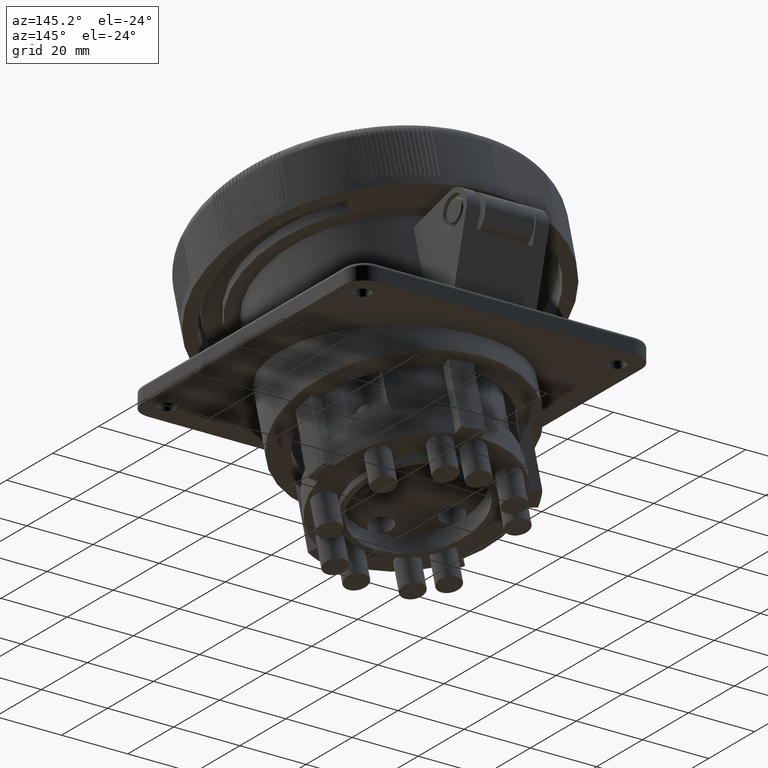
[diagram: clean part render]
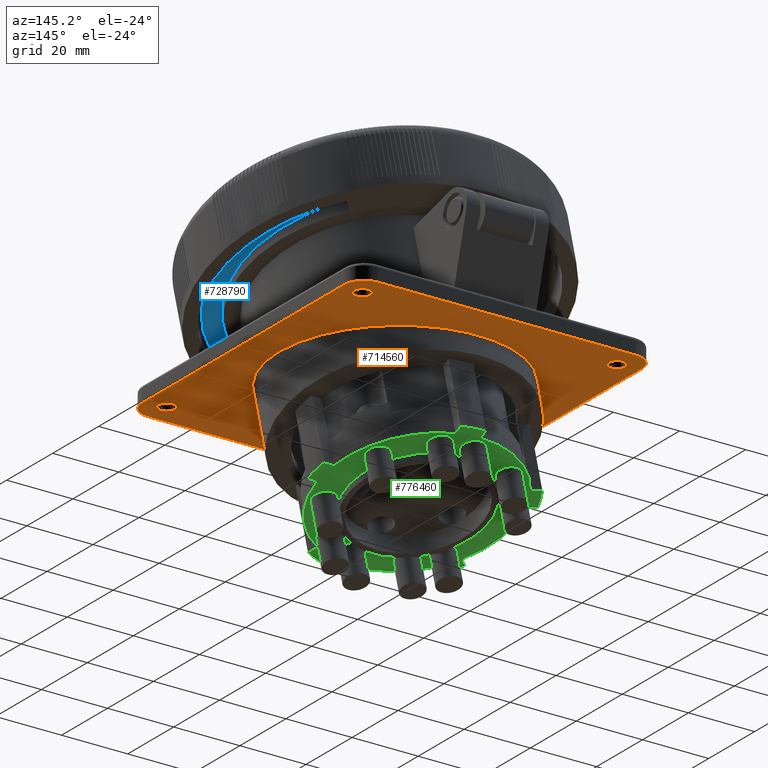
[diagram: same view with three faces highlighted in distinct colors, each labeled with its STEP entity id]
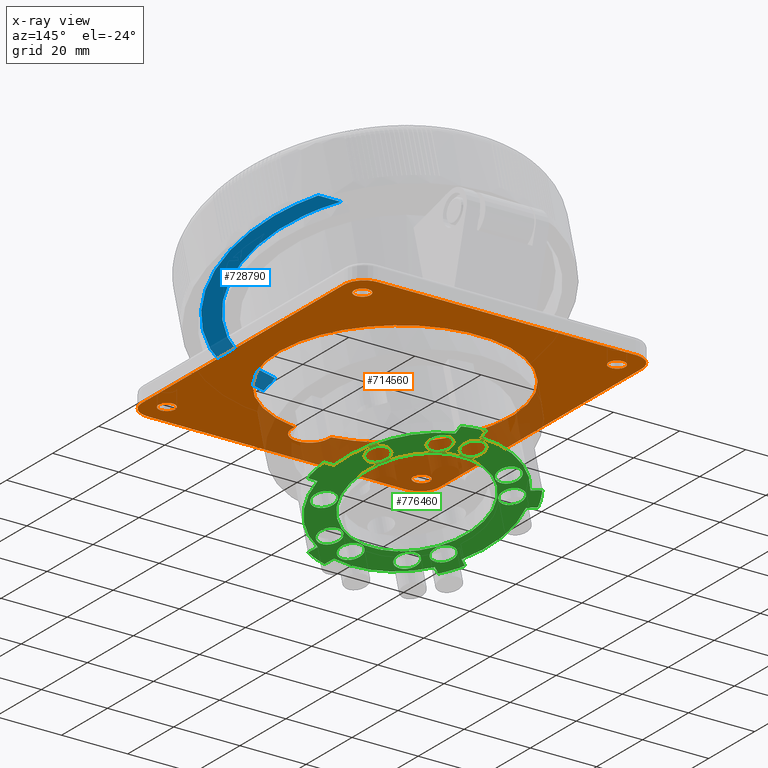
[diagram: x-ray of the same camera — body ghosted, the three highlighted faces saturated]
A machine part, auxiliary view with three faces highlighted in distinct colors.
The next image is the same camera in x-ray (body ghosted, the three faces saturated) — at least one of them is partly hidden behind the body in this view.
Their STEP definitions:

[orange] entity #714560 — the highlighted planar face has unit normal (-0, -0, 1).
#712130=CARTESIAN_POINT('',(64.9633008961693,6.04780074988078,
-13.0533630608863));
#712140=DIRECTION('',(-0.463514935788134,0.847447111148266,
-0.25881904510252));
#712150=VECTOR('',#712140,1.);
#712160=LINE('',#712130,#712150);
#712170=CARTESIAN_POINT('',(60.3116143689471,14.5525068663275,
-15.6507875927297));
#712180=VERTEX_POINT('',#712170);
#712190=CARTESIAN_POINT('',(59.8390211807516,15.4165518002921,
-15.9146757832639));
#712200=VERTEX_POINT('',#712190);
#712210=EDGE_CURVE('',#712180,#712200,#712160,.T.);
#712510=CARTESIAN_POINT('',(65.1369943147574,17.1917697138992,
-15.6507875927297));
#712520=DIRECTION('',(-0.124198452724194,0.227072769060265,
0.965925826289068));
#712530=DIRECTION('',(-0.463514935788134,0.847447111148266,
-0.25881904510252));
#712540=AXIS2_PLACEMENT_3D('',#712510,#712520,#712530);
#712550=ELLIPSE('',#712540,5.69401899225546,5.5);
#712560=CARTESIAN_POINT('',(69.9623742605676,19.8310325614709,
-15.6507875927297));
#712570=VERTEX_POINT('',#712560);
#712580=EDGE_CURVE('',#712180,#712570,#712550,.T.);
#712830=CARTESIAN_POINT('',(74.6140607877898,11.3263264450242,
-13.0533630608863));
#712840=DIRECTION('',(0.463514935788134,-0.847447111148266,
0.25881904510252));
#712850=VECTOR('',#712840,1.);
#712860=LINE('',#712830,#712850);
#712870=CARTESIAN_POINT('',(69.4897810723721,20.6950774954355,
-15.9146757832639));
#712880=VERTEX_POINT('',#712870);
#712890=EDGE_CURVE('',#712880,#712570,#712860,.T.);
#713090=CARTESIAN_POINT('',(46.4513887404245,-4.07737126534886,
-13.0533630608863));
#713100=DIRECTION('',(-0.124198452724194,0.227072769060265,
0.965925826289068));
#713110=DIRECTION('',(0.877341808329136,0.479865972285764,
1.38777878078145E-17));
#713120=AXIS2_PLACEMENT_3D('',#713090,#713100,#713110);
#713130=PLANE('',#713120);
#713140=CARTESIAN_POINT('',(34.6204764139434,-7.24543500210465,
-13.8298201961939));
#713150=DIRECTION('',(-0.124198452724194,0.227072769060265,
0.965925826289068));
#713160=DIRECTION('',(0.877341808329136,0.479865972285764,
1.38777878078145E-17));
#713170=AXIS2_PLACEMENT_3D('',#713140,#713150,#713160);
#713180=CIRCLE('',#713170,2.5);
#713190=CARTESIAN_POINT('',(36.8138309347663,-6.04577007139024,
-13.8298201961939));
#713200=VERTEX_POINT('',#713190);
#713210=CARTESIAN_POINT('',(32.4271218931206,-8.44509993281906,
-13.8298201961939));
#713220=VERTEX_POINT('',#713210);
#713230=EDGE_CURVE('',#713200,#713220,#713180,.T.);
#713240=ORIENTED_EDGE('',*,*,#713230,.T.);
#713250=EDGE_CURVE('',#713220,#713200,#713180,.T.);
#713260=ORIENTED_EDGE('',*,*,#713250,.T.);
#713270=EDGE_LOOP('',(#713260,#713240));
#713280=FACE_BOUND('',#713270,.T.);
#713290=ORIENTED_EDGE('',*,*,#712580,.T.);
#713300=ORIENTED_EDGE('',*,*,#712210,.F.);
#713310=CARTESIAN_POINT('',(48.0777589999985,48.3812709999999,
-25.1763813836561));
#713320=DIRECTION('',(-0.124198452724194,0.227072769060265,
0.965925826289068));
#713330=DIRECTION('',(-0.463514935788134,0.847447111148266,
-0.25881904510252));
#713340=AXIS2_PLACEMENT_3D('',#713310,#713320,#713330);
#713350=ELLIPSE('',#713340,36.2346663143529,35.);
#713360=EDGE_CURVE('',#712880,#712200,#713350,.T.);
#713370=ORIENTED_EDGE('',*,*,#713360,.T.);
#713380=ORIENTED_EDGE('',*,*,#712890,.F.);
#713390=EDGE_LOOP('',(#713380,#713370,#713300,#713290));
#713400=FACE_BOUND('',#713390,.T.);
#713410=CARTESIAN_POINT('',(62.7770261132955,101.737249311502,
-35.8294390299081));
#713420=DIRECTION('',(-0.124198452724194,0.227072769060265,
0.965925826289068));
#713430=DIRECTION('',(0.877341808329136,0.479865972285764,
1.38777878078145E-17));
#713440=AXIS2_PLACEMENT_3D('',#713410,#713420,#713430);
#713450=CIRCLE('',#713440,2.5);
#713460=CARTESIAN_POINT('',(64.9703806341183,102.936914242216,
-35.8294390299081));
#713470=VERTEX_POINT('',#713460);
#713480=CARTESIAN_POINT('',(60.5836715924726,100.537584380787,
-35.8294390299081));
#713490=VERTEX_POINT('',#713480);
#713500=EDGE_CURVE('',#713470,#713490,#713450,.T.);
#713510=ORIENTED_EDGE('',*,*,#713500,.T.);
#713520=EDGE_CURVE('',#713490,#713470,#713450,.T.);
#713530=ORIENTED_EDGE('',*,*,#713520,.T.);
#713540=EDGE_LOOP('',(#713530,#713510));
#713550=FACE_BOUND('',#713540,.T.);
#713560=CARTESIAN_POINT('',(-4.778293128048,64.787569445498,
-35.8294390299081));
#713570=DIRECTION('',(-0.124198452724194,0.227072769060265,
0.965925826289068));
#713580=DIRECTION('',(0.877341808329136,0.479865972285764,
1.38777878078145E-17));
#713590=AXIS2_PLACEMENT_3D('',#713560,#713570,#713580);
#713600=CIRCLE('',#713590,2.5);
#713610=CARTESIAN_POINT('',(-2.58493860722516,65.9872343762124,
-35.8294390299081));
#713620=VERTEX_POINT('',#713610);
#713630=CARTESIAN_POINT('',(-6.97164764887084,63.5879045147836,
-35.8294390299081));
#713640=VERTEX_POINT('',#713630);
#713650=EDGE_CURVE('',#713620,#713640,#713600,.T.);
#713660=ORIENTED_EDGE('',*,*,#713650,.T.);
#713670=EDGE_CURVE('',#713640,#713620,#713600,.T.);
#713680=ORIENTED_EDGE('',*,*,#713670,.T.);
#713690=EDGE_LOOP('',(#713680,#713660));
#713700=FACE_BOUND('',#713690,.T.);
#713710=CARTESIAN_POINT('',(102.175795655287,29.7042448638992,
-13.8298201961939));
#713720=DIRECTION('',(-0.124198452724194,0.227072769060265,
0.965925826289068));
#713730=DIRECTION('',(0.877341808329136,0.479865972285764,
1.38777878078145E-17));
#713740=AXIS2_PLACEMENT_3D('',#713710,#713720,#713730);
#713750=CIRCLE('',#713740,2.5);
#713760=CARTESIAN_POINT('',(104.36915017611,30.9039097946136,
-13.8298201961939));
#713770=VERTEX_POINT('',#713760);
#713780=CARTESIAN_POINT('',(99.982441134464,28.5045799331848,
-13.8298201961939));
#713790=VERTEX_POINT('',#713780);
#713800=EDGE_CURVE('',#713770,#713790,#713750,.T.);
#713810=ORIENTED_EDGE('',*,*,#713800,.T.);
#713820=EDGE_CURVE('',#713790,#713770,#713750,.T.);
#713830=ORIENTED_EDGE('',*,*,#713820,.T.);
#713840=EDGE_LOOP('',(#713830,#713810));
#713850=FACE_BOUND('',#713840,.T.);
#713860=CARTESIAN_POINT('',(34.877077913461,-8.75653865496992,
-13.4415916285401));
#713870=DIRECTION('',(0.124198452724194,-0.227072769060265,
-0.965925826289068));
#713880=DIRECTION('',(-0.877341808329136,-0.479865972285764,
-1.38777878078145E-17));
#713890=AXIS2_PLACEMENT_3D('',#713860,#713870,#713880);
#713900=CIRCLE('',#713890,6.);
#713910=CARTESIAN_POINT('',(37.6581675281898,-13.8412213218595,
-11.888677357925));
#713920=VERTEX_POINT('',#713910);
#713930=CARTESIAN_POINT('',(29.6130270634862,-11.6357344886845,
-13.4415916285401));
#713940=VERTEX_POINT('',#713930);
#713950=EDGE_CURVE('',#713920,#713940,#713900,.T.);
#713960=ORIENTED_EDGE('',*,*,#713950,.T.);
#713970=CARTESIAN_POINT('',(111.354879427837,26.4675203501447,
-11.888677357925));
#713980=DIRECTION('',(-0.877341808329136,-0.479865972285765,
3.46519046242032E-17));
#713990=VECTOR('',#713980,1.);
#714000=LINE('',#713970,#713990);
#714010=CARTESIAN_POINT('',(106.090828577862,23.5883245164301,
-11.888677357925));
#714020=VERTEX_POINT('',#714010);
#714030=EDGE_CURVE('',#714020,#713920,#714000,.T.);
#714040=ORIENTED_EDGE('',*,*,#714030,.T.);
#714050=CARTESIAN_POINT('',(103.309738963134,28.6730071833197,
-13.4415916285401));
#714060=DIRECTION('',(-0.124198452724194,0.227072769060265,
0.965925826289068));
#714070=DIRECTION('',(0.877341808329136,0.479865972285764,
1.38777878078145E-17));
#714080=AXIS2_PLACEMENT_3D('',#714050,#714060,#714070);
#714090=CIRCLE('',#714080,6.);
#714100=CARTESIAN_POINT('',(108.573789813108,31.5522030170343,
-13.4415916285401));
#714110=VERTEX_POINT('',#714100);
#714120=EDGE_CURVE('',#714020,#714110,#714090,.T.);
#714130=ORIENTED_EDGE('',*,*,#714120,.F.);
#714140=CARTESIAN_POINT('',(65.0033858490238,111.212231464971,
-37.770581868177));
#714150=DIRECTION('',(0.463514935788134,-0.847447111148266,
0.25881904510252));
#714160=VECTOR('',#714150,1.);
#714170=LINE('',#714140,#714160);
#714180=CARTESIAN_POINT('',(67.7844754637526,106.127548798082,
-36.2176675975619));
#714190=VERTEX_POINT('',#714180);
#714200=EDGE_CURVE('',#714190,#714110,#714170,.T.);
#714210=ORIENTED_EDGE('',*,*,#714200,.T.);
#714220=CARTESIAN_POINT('',(62.5204246137778,103.248352964367,
-36.2176675975619));
#714230=DIRECTION('',(-0.124198452724194,0.227072769060265,
0.965925826289068));
#714240=DIRECTION('',(0.877341808329136,0.479865972285764,
1.38777878078145E-17));
#714250=AXIS2_PLACEMENT_3D('',#714220,#714230,#714240);
#714260=CIRCLE('',#714250,6.);
#714270=CARTESIAN_POINT('',(59.739334999049,108.333035631257,
-37.770581868177));
#714280=VERTEX_POINT('',#714270);
#714290=EDGE_CURVE('',#714190,#714280,#714260,.T.);
#714300=ORIENTED_EDGE('',*,*,#714290,.F.);
#714310=CARTESIAN_POINT('',(-13.9573769005984,68.0242939592525,
-37.770581868177));
#714320=DIRECTION('',(0.877341808329136,0.479865972285765,
-1.08723540441493E-16));
#714330=VECTOR('',#714320,1.);
#714340=LINE('',#714310,#714330);
#714350=CARTESIAN_POINT('',(-8.69332605062357,70.9034897929671,
-37.770581868177));
#714360=VERTEX_POINT('',#714350);
#714370=EDGE_CURVE('',#714360,#714280,#714340,.T.);
#714380=ORIENTED_EDGE('',*,*,#714370,.T.);
#714390=CARTESIAN_POINT('',(-5.91223643589476,65.8188071260775,
-36.2176675975619));
#714400=DIRECTION('',(-0.124198452724194,0.227072769060265,
0.965925826289068));
#714410=DIRECTION('',(0.877341808329136,0.479865972285764,
1.38777878078145E-17));
#714420=AXIS2_PLACEMENT_3D('',#714390,#714400,#714410);
#714430=CIRCLE('',#714420,6.);
#714440=CARTESIAN_POINT('',(-11.1762872858696,62.9396112923629,
-36.2176675975619));
#714450=VERTEX_POINT('',#714440);
#714460=EDGE_CURVE('',#714360,#714450,#714430,.T.);
#714470=ORIENTED_EDGE('',*,*,#714460,.F.);
#714480=CARTESIAN_POINT('',(32.394116678215,-16.7204171555741,
-11.888677357925));
#714490=DIRECTION('',(-0.463514935788134,0.847447111148266,
-0.25881904510252));
#714500=VECTOR('',#714490,1.);
#714510=LINE('',#714480,#714500);
#714520=EDGE_CURVE('',#713940,#714450,#714510,.T.);
#714530=ORIENTED_EDGE('',*,*,#714520,.T.);
#714540=EDGE_LOOP('',(#714530,#714470,#714380,#714300,#714210,#714130,
#714040,#713960));
#714550=FACE_OUTER_BOUND('',#714540,.T.);
#714560=ADVANCED_FACE('',(#713280,#713400,#713550,#713700,#713850,
#714550),#713130,.F.);

[blue] entity #728790 — the highlighted planar face has unit normal (0, -0.2899, 0.957).
#720590=CARTESIAN_POINT('',(60.6895238453158,85.5498852798789,
4.55943164718637));
#720600=VERTEX_POINT('',#720590);
#720970=CARTESIAN_POINT('',(71.2638731338416,16.711622890613,
2.44078852294739));
#720980=VERTEX_POINT('',#720970);
#721010=CARTESIAN_POINT('',(48.0777589999985,48.3812709999999,
3.69999951839434));
#721020=DIRECTION('',(0.0155208342731933,-0.0283768335211543,
0.999476792638417));
#721030=DIRECTION('',(0.479614902876491,-0.876882776636393,
-0.0323441026652965));
#721040=AXIS2_PLACEMENT_3D('',#721010,#721020,#721030);
#721050=ELLIPSE('',#721040,39.270546639095,39.25);
#721060=EDGE_CURVE('',#720980,#720600,#721050,.T.);
#728290=CARTESIAN_POINT('',(72.3194900872389,14.7816321426027,
2.36960019474671));
#728300=DIRECTION('',(0.479614902876491,-0.876882776636394,
-0.0323441026652964));
#728310=VECTOR('',#728300,1.);
#728320=LINE('',#728290,#728310);
#728330=CARTESIAN_POINT('',(73.8024807846005,12.0702714391944,
2.26959078494842));
#728340=VERTEX_POINT('',#728330);
#728350=EDGE_CURVE('',#720980,#728340,#728320,.T.);
#728550=CARTESIAN_POINT('',(63.9227045393117,115.271962737874,
5.3530836739709));
#728560=DIRECTION('',(0.0155208342731933,-0.0283768335211543,
0.999476792638417));
#728570=DIRECTION('',(0.479614902876491,-0.876882776636393,
-0.0323441026652965));
#728580=AXIS2_PLACEMENT_3D('',#728550,#728560,#728570);
#728590=PLANE('',#728580);
#728600=CARTESIAN_POINT('',(11.9963675723615,58.9169486561428,
4.55943164718638));
#728610=DIRECTION('',(0.877341808329136,0.479865972285764,
-2.73235718333155E-16));
#728620=VECTOR('',#728610,1.);
#728630=LINE('',#728600,#728620);
#728640=CARTESIAN_POINT('',(66.6603242438693,88.8156408968746,
4.55943164718637));
#728650=VERTEX_POINT('',#728640);
#728660=EDGE_CURVE('',#720600,#728650,#728630,.T.);
#728670=ORIENTED_EDGE('',*,*,#728660,.T.);
#728680=ORIENTED_EDGE('',*,*,#721060,.T.);
#728690=ORIENTED_EDGE('',*,*,#728350,.F.);
#728700=CARTESIAN_POINT('',(48.0777589999985,48.3812709999999,
3.69999951839434));
#728710=DIRECTION('',(0.0155208342731933,-0.0283768335211543,
0.999476792638417));
#728720=DIRECTION('',(0.479614902876499,-0.876882776636389,
-0.0323441026652964));
#728730=AXIS2_PLACEMENT_3D('',#728700,#728710,#728720);
#728740=ELLIPSE('',#728730,44.5232949156618,44.5);
#728750=EDGE_CURVE('',#728340,#728650,#728740,.T.);
#728760=ORIENTED_EDGE('',*,*,#728750,.F.);
#728770=EDGE_LOOP('',(#728760,#728690,#728680,#728670));
#728780=FACE_OUTER_BOUND('',#728770,.T.);
#728790=ADVANCED_FACE('',(#728780),#728590,.F.);

[green] entity #776460 — the highlighted planar face has unit normal (-0, 0.2588, -0.9659).
#709210=CARTESIAN_POINT('',(74.1896106273238,59.8014813567555,
-62.0000004816055));
#709220=VERTEX_POINT('',#709210);
#709450=CARTESIAN_POINT('',(76.787577873568,61.3426096749529,
-62.0000004816055));
#709460=VERTEX_POINT('',#709450);
#709490=CARTESIAN_POINT('',(26.8667654374664,31.7293118845661,
-62.0000004816055));
#709500=DIRECTION('',(-0.860060274487055,-0.510192438447741,
1.45716771982052E-16));
#709510=VECTOR('',#709500,1.);
#709520=LINE('',#709490,#709510);
#709530=EDGE_CURVE('',#709460,#709220,#709520,.T.);
#709760=CARTESIAN_POINT('',(71.6301849467216,32.3334290259488,
-62.0000004816055));
#709770=VERTEX_POINT('',#709760);
#709880=CARTESIAN_POINT('',(48.0777589999984,48.3812710000001,
-62.0000004816055));
#709890=DIRECTION('',(-2.63677968348475E-16,1.66533453693773E-16,-1.));
#709900=DIRECTION('',(-0.877341808329136,-0.479865972285764,
1.52655665885959E-16));
#709910=AXIS2_PLACEMENT_3D('',#709880,#709890,#709900);
#709920=CIRCLE('',#709910,28.5);
#709930=EDGE_CURVE('',#709220,#709770,#709920,.T.);
#710270=CARTESIAN_POINT('',(97.9855336899202,9.16065123938455,
-62.0000004816055));
#710280=DIRECTION('',(0.750995084153517,-0.66030779457557,
-2.77555756156289E-16));
#710290=VECTOR('',#710280,1.);
#710300=LINE('',#710270,#710290);
#710310=CARTESIAN_POINT('',(73.8987011061092,30.3388501881223,
-62.0000004816055));
#710320=VERTEX_POINT('',#710310);
#710330=EDGE_CURVE('',#709770,#710320,#710300,.T.);
#735040=CARTESIAN_POINT('',(20.0761410164147,43.0747287829401,
-62.0000004816055));
#735050=VERTEX_POINT('',#735040);
#735080=CARTESIAN_POINT('',(20.6414704824839,43.1110556393287,
-62.0000004816055));
#735090=DIRECTION('',(-0.997941835857432,-0.064125597428001,
2.22044604925031E-16));
#735100=VECTOR('',#735090,1.);
#735110=LINE('',#735080,#735100);
#735120=CARTESIAN_POINT('',(17.0616776350422,42.8810258452441,
-62.0000004816055));
#735130=VERTEX_POINT('',#735120);
#735140=EDGE_CURVE('',#735050,#735130,#735110,.T.);
#735410=CARTESIAN_POINT('',(19.6272618344187,50.0603216339421,
-62.0000004816055));
#735420=VERTEX_POINT('',#735410);
#735510=CARTESIAN_POINT('',(16.6127984530463,49.8666186962461,
-62.0000004816055));
#735520=VERTEX_POINT('',#735510);
#735550=CARTESIAN_POINT('',(16.9351558573129,49.8873326901796,
-62.0000004816055));
#735560=DIRECTION('',(0.997941835857432,0.0641255974279989,
-2.22044604925031E-16));
#735570=VECTOR('',#735560,1.);
#735580=LINE('',#735550,#735570);
#735590=EDGE_CURVE('',#735520,#735420,#735580,.T.);
#735800=CARTESIAN_POINT('',(34.3779616185455,73.3725805236552,
-62.0000004816055));
#735810=VERTEX_POINT('',#735800);
#735920=CARTESIAN_POINT('',(48.0777589999984,48.3812710000001,
-62.0000004816055));
#735930=DIRECTION('',(-2.63677968348475E-16,1.66533453693773E-16,-1.));
#735940=DIRECTION('',(-0.877341808329136,-0.479865972285764,
1.52655665885959E-16));
#735950=AXIS2_PLACEMENT_3D('',#735920,#735930,#735940);
#735960=CIRCLE('',#735950,28.5);
#735970=EDGE_CURVE('',#735420,#735810,#735960,.T.);
#736170=CARTESIAN_POINT('',(66.7018087658017,-7.95012010983717,
-62.0000004816055));
#736180=DIRECTION('',(-0.3693680539729,0.929283186496061,
2.77555756156289E-16));
#736190=VECTOR('',#736180,1.);
#736200=LINE('',#736170,#736190);
#736210=CARTESIAN_POINT('',(33.2622187636592,76.1796480660341,
-62.0000004816055));
#736220=VERTEX_POINT('',#736210);
#736230=EDGE_CURVE('',#735810,#736220,#736200,.T.);
#736500=CARTESIAN_POINT('',(40.882943924018,75.9581569014655,
-62.0000004816055));
#736510=VERTEX_POINT('',#736500);
#736600=CARTESIAN_POINT('',(39.7672010691316,78.7652244438444,
-62.0000004816055));
#736610=VERTEX_POINT('',#736600);
#736640=CARTESIAN_POINT('',(72.8893222110434,-4.56583233596846,
-62.0000004816055));
#736650=DIRECTION('',(0.369368053972896,-0.929283186496063,
-2.4980018054066E-16));
#736660=VECTOR('',#736650,1.);
#736670=LINE('',#736640,#736660);
#736680=EDGE_CURVE('',#736610,#736510,#736670,.T.);
#736890=CARTESIAN_POINT('',(70.6182635581896,65.8219032781648,
-62.0000004816055));
#736900=VERTEX_POINT('',#736890);
#737010=CARTESIAN_POINT('',(48.0777589999984,48.3812710000001,
-62.0000004816055));
#737020=DIRECTION('',(-2.63677968348475E-16,1.66533453693773E-16,-1.));
#737030=DIRECTION('',(-0.877341808329136,-0.479865972285764,
1.52655665885959E-16));
#737040=AXIS2_PLACEMENT_3D('',#737010,#737020,#737030);
#737050=CIRCLE('',#737040,28.5);
#737060=EDGE_CURVE('',#736510,#736900,#737050,.T.);
#737260=CARTESIAN_POINT('',(23.5056561344929,37.8744479937516,
-62.0000004816055));
#737270=DIRECTION('',(0.860060274487053,0.510192438447744,
-1.45716771982052E-16));
#737280=VECTOR('',#737270,1.);
#737290=LINE('',#737260,#737280);
#737300=CARTESIAN_POINT('',(73.2162308044338,67.3630315963623,
-62.0000004816055));
#737310=VERTEX_POINT('',#737300);
#737320=EDGE_CURVE('',#736900,#737310,#737290,.T.);
#737570=CARTESIAN_POINT('',(48.0777589999985,48.381271,-62.0000004816055
));
#737580=DIRECTION('',(1.52655665885959E-16,-3.05311331771918E-16,1.));
#737590=DIRECTION('',(-0.605313269510932,-0.795987340197057,
-1.66533453693773E-16));
#737600=AXIS2_PLACEMENT_3D('',#737570,#737580,#737590);
#737610=CIRCLE('',#737600,31.5);
#737620=EDGE_CURVE('',#709460,#737310,#737610,.T.);
#738500=CARTESIAN_POINT('',(41.0531244154093,20.7605449242251,
-62.0000004816055));
#738510=VERTEX_POINT('',#738500);
#738590=CARTESIAN_POINT('',(67.0080303846926,27.0764634368741,
-62.0000004816055));
#738600=VERTEX_POINT('',#738590);
#738630=CARTESIAN_POINT('',(48.0777589999984,48.3812710000001,
-62.0000004816055));
#738640=DIRECTION('',(-2.63677968348475E-16,1.66533453693773E-16,-1.));
#738650=DIRECTION('',(-0.877341808329136,-0.479865972285764,
1.52655665885959E-16));
#738660=AXIS2_PLACEMENT_3D('',#738630,#738640,#738650);
#738670=CIRCLE('',#738660,28.5);
#738680=EDGE_CURVE('',#738600,#738510,#738670,.T.);
#738970=CARTESIAN_POINT('',(69.2765465440803,25.0818845990477,
-62.0000004816055));
#738980=VERTEX_POINT('',#738970);
#739010=CARTESIAN_POINT('',(91.4500001309065,5.5860123290662,
-62.0000004816055));
#739020=DIRECTION('',(-0.750995084153517,0.660307794575569,
2.77555756156289E-16));
#739030=VECTOR('',#739020,1.);
#739040=LINE('',#739010,#739030);
#739050=EDGE_CURVE('',#738980,#738600,#739040,.T.);
#739170=CARTESIAN_POINT('',(48.0777589999985,48.381271,-62.0000004816055
));
#739180=DIRECTION('',(1.52655665885959E-16,-3.05311331771918E-16,1.));
#739190=DIRECTION('',(-0.605313269510932,-0.795987340197057,
-1.66533453693773E-16));
#739200=AXIS2_PLACEMENT_3D('',#739170,#739180,#739190);
#739210=CIRCLE('',#739200,31.5);
#739220=EDGE_CURVE('',#738980,#710320,#739210,.T.);
#739500=CARTESIAN_POINT('',(37.6435713674416,12.0260135707067,
-62.0000004816055));
#739510=DIRECTION('',(-0.363630915691015,-0.931543105365347,
-1.38777878078145E-16));
#739520=VECTOR('',#739510,1.);
#739530=LINE('',#739500,#739520);
#739540=CARTESIAN_POINT('',(39.9547116218985,17.9466508891272,
-62.0000004816055));
#739550=VERTEX_POINT('',#739540);
#739560=EDGE_CURVE('',#738510,#739550,#739530,.T.);
#739830=CARTESIAN_POINT('',(34.5323226778519,23.3059613340622,
-62.0000004816055));
#739840=VERTEX_POINT('',#739830);
#739980=CARTESIAN_POINT('',(33.433909884341,20.4920672989643,
-62.0000004816055));
#739990=VERTEX_POINT('',#739980);
#740020=CARTESIAN_POINT('',(33.2586276005711,20.0430323135085,
-62.0000004816055));
#740030=DIRECTION('',(0.363630915691021,0.931543105365345,
1.11022302462516E-16));
#740040=VECTOR('',#740030,1.);
#740050=LINE('',#740020,#740040);
#740060=EDGE_CURVE('',#739990,#739840,#740050,.T.);
#740260=CARTESIAN_POINT('',(48.0777589999984,48.3812710000001,
-62.0000004816055));
#740270=DIRECTION('',(-2.63677968348475E-16,1.66533453693773E-16,-1.));
#740280=DIRECTION('',(-0.877341808329136,-0.479865972285764,
1.52655665885959E-16));
#740290=AXIS2_PLACEMENT_3D('',#740260,#740270,#740280);
#740300=CIRCLE('',#740290,28.5);
#740310=EDGE_CURVE('',#739840,#735050,#740300,.T.);
#740450=CARTESIAN_POINT('',(48.0777589999985,48.381271,-62.0000004816055
));
#740460=DIRECTION('',(1.52655665885959E-16,-3.05311331771918E-16,1.));
#740470=DIRECTION('',(-0.605313269510932,-0.795987340197057,
-1.66533453693773E-16));
#740480=AXIS2_PLACEMENT_3D('',#740450,#740460,#740470);
#740490=CIRCLE('',#740480,31.5);
#740500=EDGE_CURVE('',#739990,#739550,#740490,.T.);
#774160=CARTESIAN_POINT('',(48.0777589999985,48.381271,-62.0000004816055
));
#774170=DIRECTION('',(1.52655665885959E-16,-3.05311331771918E-16,1.));
#774180=DIRECTION('',(-0.605313269510932,-0.795987340197057,
-1.66533453693773E-16));
#774190=AXIS2_PLACEMENT_3D('',#774160,#774170,#774180);
#774200=CIRCLE('',#774190,31.5);
#774210=EDGE_CURVE('',#736610,#736220,#774200,.T.);
#774360=CARTESIAN_POINT('',(48.0777589999985,48.381271,-62.0000004816055
));
#774370=DIRECTION('',(1.52655665885959E-16,-3.05311331771918E-16,1.));
#774380=DIRECTION('',(-0.605313269510932,-0.795987340197057,
-1.66533453693773E-16));
#774390=AXIS2_PLACEMENT_3D('',#774360,#774370,#774380);
#774400=CIRCLE('',#774390,31.5);
#774410=EDGE_CURVE('',#735520,#735130,#774400,.T.);
#774540=CARTESIAN_POINT('',(48.0777589999984,48.3812710000002,
-62.0000004816055));
#774550=DIRECTION('',(-2.67120760751524E-16,1.70257009483023E-16,-1.));
#774560=DIRECTION('',(-0.877341808329136,-0.479865972285764,
1.52655665885959E-16));
#774570=AXIS2_PLACEMENT_3D('',#774540,#774550,#774560);
#774580=PLANE('',#774570);
#774590=ORIENTED_EDGE('',*,*,#739050,.T.);
#774600=ORIENTED_EDGE('',*,*,#739220,.F.);
#774610=ORIENTED_EDGE('',*,*,#710330,.T.);
#774620=ORIENTED_EDGE('',*,*,#709930,.T.);
#774630=ORIENTED_EDGE('',*,*,#709530,.T.);
#774640=ORIENTED_EDGE('',*,*,#737620,.F.);
#774650=ORIENTED_EDGE('',*,*,#737320,.T.);
#774660=ORIENTED_EDGE('',*,*,#737060,.T.);
#774670=ORIENTED_EDGE('',*,*,#736680,.T.);
#774680=ORIENTED_EDGE('',*,*,#774210,.F.);
#774690=ORIENTED_EDGE('',*,*,#736230,.T.);
#774700=ORIENTED_EDGE('',*,*,#735970,.T.);
#774710=ORIENTED_EDGE('',*,*,#735590,.T.);
#774720=ORIENTED_EDGE('',*,*,#774410,.F.);
#774730=ORIENTED_EDGE('',*,*,#735140,.T.);
#774740=ORIENTED_EDGE('',*,*,#740310,.T.);
#774750=ORIENTED_EDGE('',*,*,#740060,.T.);
#774760=ORIENTED_EDGE('',*,*,#740500,.F.);
#774770=ORIENTED_EDGE('',*,*,#739560,.T.);
#774780=ORIENTED_EDGE('',*,*,#738680,.T.);
#774790=EDGE_LOOP('',(#774780,#774770,#774760,#774750,#774740,#774730,
#774720,#774710,#774700,#774690,#774680,#774670,#774660,#774650,#774640,
#774630,#774620,#774610,#774600,#774590));
#774800=FACE_OUTER_BOUND('',#774790,.T.);
#774810=CARTESIAN_POINT('',(48.0777589999984,48.3812710000001,
-62.0000004816055));
#774820=DIRECTION('',(-2.63677968348475E-16,1.66533453693773E-16,-1.));
#774830=DIRECTION('',(-0.877341808329136,-0.479865972285764,
1.52655665885959E-16));
#774840=AXIS2_PLACEMENT_3D('',#774810,#774820,#774830);
#774850=CIRCLE('',#774840,20.25);
#774860=CARTESIAN_POINT('',(30.3115873813334,38.6639850612134,
-62.0000004816055));
#774870=VERTEX_POINT('',#774860);
#774880=CARTESIAN_POINT('',(65.8439306186634,58.0985569387868,
-62.0000004816055));
#774890=VERTEX_POINT('',#774880);
#774900=EDGE_CURVE('',#774870,#774890,#774850,.T.);
#774910=ORIENTED_EDGE('',*,*,#774900,.F.);
#774920=EDGE_CURVE('',#774890,#774870,#774850,.T.);
#774930=ORIENTED_EDGE('',*,*,#774920,.F.);
#774940=EDGE_LOOP('',(#774930,#774910));
#774950=FACE_BOUND('',#774940,.T.);
#774960=CARTESIAN_POINT('',(63.0759478669056,29.6448270814602,
-62.0000004816055));
#774970=DIRECTION('',(4.85722573273506E-16,-3.33066907387547E-16,1.));
#774980=DIRECTION('',(0.877341808329136,0.479865972285764,
-2.77555756156289E-16));
#774990=AXIS2_PLACEMENT_3D('',#774960,#774970,#774980);
#775000=CIRCLE('',#774990,3.5);
#775010=CARTESIAN_POINT('',(66.1466441960576,31.3243579844604,
-62.0000004816055));
#775020=VERTEX_POINT('',#775010);
#775030=CARTESIAN_POINT('',(60.0052515377536,27.96529617846,
-62.0000004816055));
#775040=VERTEX_POINT('',#775030);
#775050=EDGE_CURVE('',#775020,#775040,#775000,.T.);
#775060=ORIENTED_EDGE('',*,*,#775050,.T.);
#775070=EDGE_CURVE('',#775040,#775020,#775000,.T.);
#775080=ORIENTED_EDGE('',*,*,#775070,.T.);
#775090=EDGE_LOOP('',(#775080,#775060));
#775100=FACE_BOUND('',#775090,.T.);
#775110=CARTESIAN_POINT('',(59.8314668544243,69.306144994192,
-62.0000004816055));
#775120=DIRECTION('',(4.85722573273506E-16,-3.33066907387547E-16,1.));
#775130=DIRECTION('',(0.877341808329136,0.479865972285764,
-2.77555756156289E-16));
#775140=AXIS2_PLACEMENT_3D('',#775110,#775120,#775130);
#775150=CIRCLE('',#775140,3.5);
#775160=CARTESIAN_POINT('',(62.9021631835762,70.9856758971922,
-62.0000004816055));
#775170=VERTEX_POINT('',#775160);
#775180=CARTESIAN_POINT('',(56.7607705252723,67.6266140911918,
-62.0000004816055));
#775190=VERTEX_POINT('',#775180);
#775200=EDGE_CURVE('',#775170,#775190,#775150,.T.);
#775210=ORIENTED_EDGE('',*,*,#775200,.T.);
#775220=EDGE_CURVE('',#775190,#775170,#775150,.T.);
#775230=ORIENTED_EDGE('',*,*,#775220,.T.);
#775240=EDGE_LOOP('',(#775230,#775210));
#775250=FACE_BOUND('',#775240,.T.);
#775260=CARTESIAN_POINT('',(71.80308984349,52.0018616102285,
-62.0000004816055));
#775270=DIRECTION('',(4.85722573273506E-16,-3.33066907387547E-16,1.));
#775280=DIRECTION('',(0.877341808329136,0.479865972285764,
-2.77555756156289E-16));
#775290=AXIS2_PLACEMENT_3D('',#775260,#775270,#775280);
#775300=CIRCLE('',#775290,3.5);
#775310=CARTESIAN_POINT('',(74.873786172642,53.6813925132287,
-62.0000004816055));
#775320=VERTEX_POINT('',#775310);
#775330=CARTESIAN_POINT('',(68.732393514338,50.3223307072283,
-62.0000004816055));
#775340=VERTEX_POINT('',#775330);
#775350=EDGE_CURVE('',#775320,#775340,#775300,.T.);
#775360=ORIENTED_EDGE('',*,*,#775350,.T.);
#775370=EDGE_CURVE('',#775340,#775320,#775300,.T.);
#775380=ORIENTED_EDGE('',*,*,#775370,.T.);
#775390=EDGE_LOOP('',(#775380,#775360));
#775400=FACE_BOUND('',#775390,.T.);
#775410=CARTESIAN_POINT('',(25.7207244712303,57.1084129765844,
-62.0000004816055));
#775420=DIRECTION('',(4.85722573273506E-16,-3.33066907387547E-16,1.));
#775430=DIRECTION('',(0.877341808329136,0.479865972285764,
-2.77555756156289E-16));
#775440=AXIS2_PLACEMENT_3D('',#775410,#775420,#775430);
#775450=CIRCLE('',#775440,3.5);
#775460=CARTESIAN_POINT('',(28.7914208003823,58.7879438795846,
-62.0000004816055));
#775470=VERTEX_POINT('',#775460);
#775480=CARTESIAN_POINT('',(22.6500281420783,55.4288820735842,
-62.0000004816055));
#775490=VERTEX_POINT('',#775480);
#775500=EDGE_CURVE('',#775470,#775490,#775450,.T.);
#775510=ORIENTED_EDGE('',*,*,#775500,.T.);
#775520=EDGE_CURVE('',#775490,#775470,#775450,.T.);
#775530=ORIENTED_EDGE('',*,*,#775520,.T.);
#775540=EDGE_LOOP('',(#775530,#775510));
#775550=FACE_BOUND('',#775540,.T.);
#775560=CARTESIAN_POINT('',(44.4571683897701,72.1066018434914,
-62.0000004816055));
#775570=DIRECTION('',(4.85722573273506E-16,-3.33066907387547E-16,1.));
#775580=DIRECTION('',(0.877341808329136,0.479865972285764,
-2.77555756156289E-16));
#775590=AXIS2_PLACEMENT_3D('',#775560,#775570,#775580);
#775600=CIRCLE('',#775590,3.5);
#775610=CARTESIAN_POINT('',(47.527864718922,73.7861327464916,
-62.0000004816055));
#775620=VERTEX_POINT('',#775610);
#775630=CARTESIAN_POINT('',(41.3864720606181,70.4270709404912,
-62.0000004816055));
#775640=VERTEX_POINT('',#775630);
#775650=EDGE_CURVE('',#775620,#775640,#775600,.T.);
#775660=ORIENTED_EDGE('',*,*,#775650,.T.);
#775670=EDGE_CURVE('',#775640,#775620,#775600,.T.);
#775680=ORIENTED_EDGE('',*,*,#775670,.T.);
#775690=EDGE_LOOP('',(#775680,#775660));
#775700=FACE_BOUND('',#775690,.T.);
#775710=CARTESIAN_POINT('',(39.3506170234142,26.0242364712317,
-62.0000004816055));
#775720=DIRECTION('',(4.85722573273506E-16,-3.33066907387547E-16,1.));
#775730=DIRECTION('',(0.877341808329136,0.479865972285764,
-2.77555756156289E-16));
#775740=AXIS2_PLACEMENT_3D('',#775710,#775720,#775730);
#775750=CIRCLE('',#775740,3.5);
#775760=CARTESIAN_POINT('',(42.4213133525662,27.7037673742318,
-62.0000004816055));
#775770=VERTEX_POINT('',#775760);
#775780=CARTESIAN_POINT('',(36.2799206942622,24.3447055682315,
-62.0000004816055));
#775790=VERTEX_POINT('',#775780);
#775800=EDGE_CURVE('',#775770,#775790,#775750,.T.);
#775810=ORIENTED_EDGE('',*,*,#775800,.T.);
#775820=EDGE_CURVE('',#775790,#775770,#775750,.T.);
#775830=ORIENTED_EDGE('',*,*,#775820,.T.);
#775840=EDGE_LOOP('',(#775830,#775810));
#775850=FACE_BOUND('',#775840,.T.);
#775860=CARTESIAN_POINT('',(24.0794326228271,48.0978435934973,
-62.0000004816055));
#775870=DIRECTION('',(4.85722573273506E-16,-3.33066907387547E-16,1.));
#775880=DIRECTION('',(0.877341808329136,0.479865972285764,
-2.77555756156289E-16));
#775890=AXIS2_PLACEMENT_3D('',#775860,#775870,#775880);
#775900=CIRCLE('',#775890,3.5);
#775910=CARTESIAN_POINT('',(27.1501289519791,49.7773744964975,
-62.0000004816055));
#775920=VERTEX_POINT('',#775910);
#775930=CARTESIAN_POINT('',(21.0087362936752,46.4183126904971,
-62.0000004816055));
#775940=VERTEX_POINT('',#775930);
#775950=EDGE_CURVE('',#775920,#775940,#775900,.T.);
#775960=ORIENTED_EDGE('',*,*,#775950,.T.);
#775970=EDGE_CURVE('',#775940,#775920,#775900,.T.);
#775980=ORIENTED_EDGE('',*,*,#775970,.T.);
#775990=EDGE_LOOP('',(#775980,#775960));
#776000=FACE_BOUND('',#775990,.T.);
#776010=CARTESIAN_POINT('',(69.0026329941906,36.6275631455743,
-62.0000004816055));
#776020=DIRECTION('',(4.85722573273506E-16,-3.33066907387547E-16,1.));
#776030=DIRECTION('',(0.877341808329136,0.479865972285764,
-2.77555756156289E-16));
#776040=AXIS2_PLACEMENT_3D('',#776010,#776020,#776030);
#776050=CIRCLE('',#776040,3.5);
#776060=CARTESIAN_POINT('',(72.0733293233426,38.3070940485745,
-62.0000004816055));
#776070=VERTEX_POINT('',#776060);
#776080=CARTESIAN_POINT('',(65.9319366650386,34.9480322425741,
-62.0000004816055));
#776090=VERTEX_POINT('',#776080);
#776100=EDGE_CURVE('',#776070,#776090,#776050,.T.);
#776110=ORIENTED_EDGE('',*,*,#776100,.T.);
#776120=EDGE_CURVE('',#776090,#776070,#776050,.T.);
#776130=ORIENTED_EDGE('',*,*,#776120,.T.);
#776140=EDGE_LOOP('',(#776130,#776110));
#776150=FACE_BOUND('',#776140,.T.);
#776160=CARTESIAN_POINT('',(35.8331404772528,69.0227175876893,
-62.0000004816055));
#776170=DIRECTION('',(4.85722573273506E-16,-3.33066907387547E-16,1.));
#776180=DIRECTION('',(0.877341808329136,0.479865972285764,
-2.77555756156289E-16));
#776190=AXIS2_PLACEMENT_3D('',#776160,#776170,#776180);
#776200=CIRCLE('',#776190,3.5);
#776210=CARTESIAN_POINT('',(38.9038368064048,70.7022484906895,
-62.0000004816055));
#776220=VERTEX_POINT('',#776210);
#776230=CARTESIAN_POINT('',(32.7624441481008,67.3431866846891,
-62.0000004816055));
#776240=VERTEX_POINT('',#776230);
#776250=EDGE_CURVE('',#776220,#776240,#776200,.T.);
#776260=ORIENTED_EDGE('',*,*,#776250,.T.);
#776270=EDGE_CURVE('',#776240,#776220,#776200,.T.);
#776280=ORIENTED_EDGE('',*,*,#776270,.T.);
#776290=EDGE_LOOP('',(#776280,#776260));
#776300=FACE_BOUND('',#776290,.T.);
#776310=CARTESIAN_POINT('',(48.3611864065013,24.3829446228285,
-62.0000004816055));
#776320=DIRECTION('',(4.85722573273506E-16,-3.33066907387547E-16,1.));
#776330=DIRECTION('',(0.877341808329136,0.479865972285764,
-2.77555756156289E-16));
#776340=AXIS2_PLACEMENT_3D('',#776310,#776320,#776330);
#776350=CIRCLE('',#776340,3.5);
#776360=CARTESIAN_POINT('',(51.4318827356532,26.0624755258287,
-62.0000004816055));
#776370=VERTEX_POINT('',#776360);
#776380=CARTESIAN_POINT('',(45.2904900773493,22.7034137198284,
-62.0000004816055));
#776390=VERTEX_POINT('',#776380);
#776400=EDGE_CURVE('',#776370,#776390,#776350,.T.);
#776410=ORIENTED_EDGE('',*,*,#776400,.T.);
#776420=EDGE_CURVE('',#776390,#776370,#776350,.T.);
#776430=ORIENTED_EDGE('',*,*,#776420,.T.);
#776440=EDGE_LOOP('',(#776430,#776410));
#776450=FACE_BOUND('',#776440,.T.);
#776460=ADVANCED_FACE('',(#774800,#774950,#775100,#775250,#775400,
#775550,#775700,#775850,#776000,#776150,#776300,#776450),#774580,.T.);